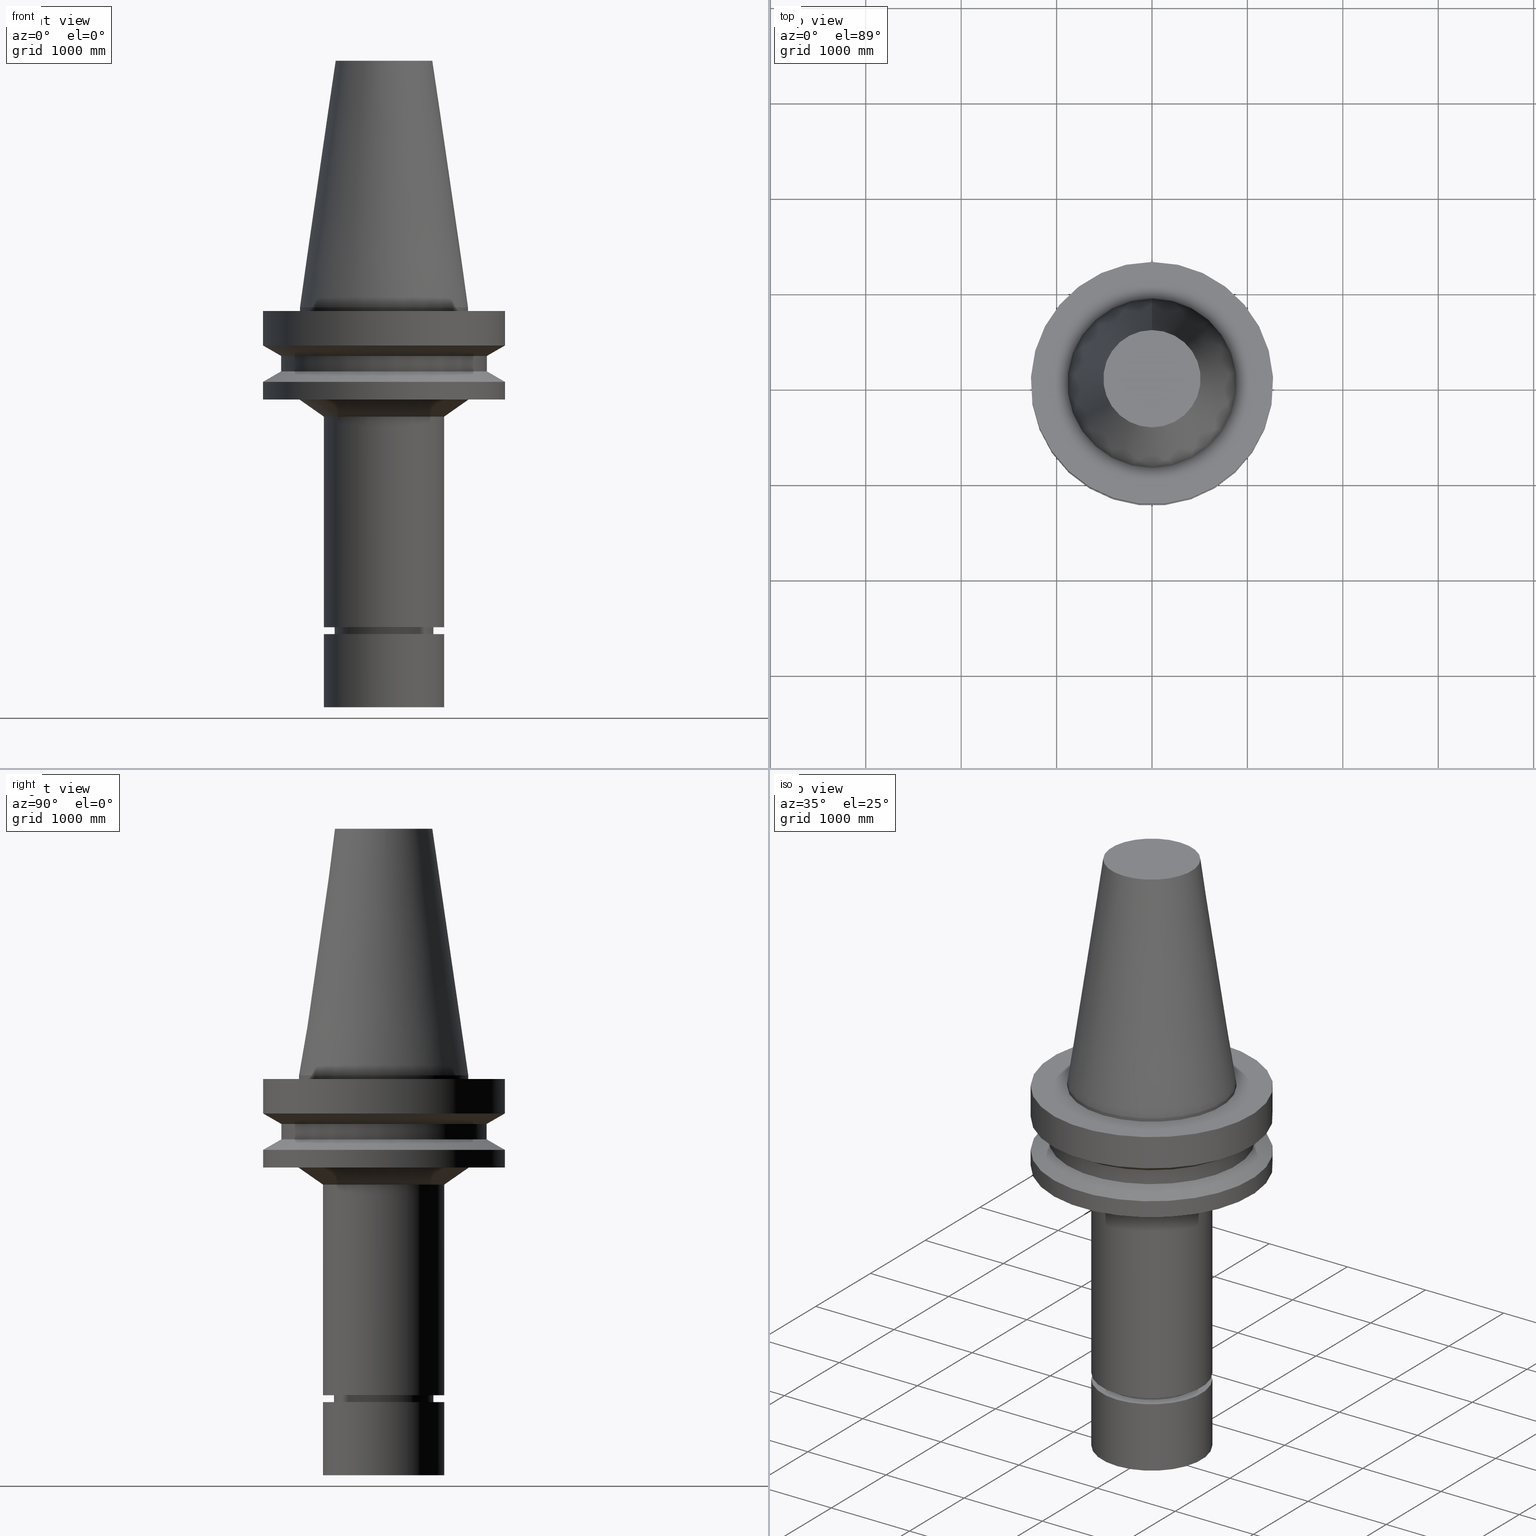
[diagram: canonical four-view strip — front | top / right | iso, engineering-drawing reading convention]
A machine part, canonical four-view strip (front | top / right | iso — engineering-drawing reading convention). The complete STEP part file that produces these views, byte-faithful:
ISO-10303-21;
HEADER;
FILE_DESCRIPTION((''),'1');
FILE_NAME('V:/90_\X2\53D65F9730C730FC30BF\X0\/00_\X2\6DE18DEF30C730FC30BF\X0\/ALL/BBT-BKUS\X2\FF76FF80FF9BFF78FF9E752852A05DE556F3\X0\201801/BBT50-MEGAER/BBT50-MEGAER32-165NL.stp','2018-02-02T09:12:51',(''),(''),'Spatial Interop R21 SP3','Kubotek KeyCreator 2011 V10.0.2 (22737)',' ');
FILE_SCHEMA(('automotive_design'));
ENDSEC;
DATA;
#1=MECHANICAL_DESIGN_GEOMETRIC_PRESENTATION_REPRESENTATION(' ',(#14,#15,#16,#17,#18,#19,#20,#21,#22,#23,#24,#25,#26,#27,#28,#29,#30,#31,#32,#33,#34,#35,#36,#37,#38,#39,#40,#41,#42,#43,#44,#45,#46,#47,#48,#49,#50,#51,#52,#53,#54,#55),#10);
#2=PRODUCT_DEFINITION_CONTEXT('',#56,'design');
#3=APPLICATION_PROTOCOL_DEFINITION('INTERNATIONAL STANDARD','automotive_design',1994,#56);
#4=PRODUCT_CATEGORY_RELATIONSHIP('NONE','NONE',#57,#58);
#5=SHAPE_DEFINITION_REPRESENTATION(#59,#60);
#6=PRODUCT_DEFINITION_CONTEXT('',#61,'design');
#7=APPLICATION_PROTOCOL_DEFINITION('INTERNATIONAL STANDARD','automotive_design',1994,#61);
#8=PRODUCT_CATEGORY_RELATIONSHIP('NONE','NONE',#62,#63);
#9=SHAPE_DEFINITION_REPRESENTATION(#64,#65);
#10= (GEOMETRIC_REPRESENTATION_CONTEXT(3)GLOBAL_UNCERTAINTY_ASSIGNED_CONTEXT((#68))GLOBAL_UNIT_ASSIGNED_CONTEXT((#70,#71,#72))REPRESENTATION_CONTEXT('NONE','WORKSPACE'));
#14=STYLED_ITEM('',(#74,#75),#76);
#15=STYLED_ITEM('',(#77,#78),#79);
#16=STYLED_ITEM('',(#80),#81);
#17=STYLED_ITEM('',(#82),#83);
#18=STYLED_ITEM('',(#84,#85),#86);
#19=STYLED_ITEM('',(#87),#88);
#20=STYLED_ITEM('',(#89),#90);
#21=STYLED_ITEM('',(#91,#92),#93);
#22=STYLED_ITEM('',(#94,#95),#96);
#23=STYLED_ITEM('',(#97),#98);
#24=STYLED_ITEM('',(#99,#100),#101);
#25=STYLED_ITEM('',(#102,#103),#104);
#26=STYLED_ITEM('',(#105,#106),#107);
#27=STYLED_ITEM('',(#108,#109),#110);
#28=STYLED_ITEM('',(#111,#112),#113);
#29=STYLED_ITEM('',(#114,#115),#116);
#30=STYLED_ITEM('',(#117),#118);
#31=STYLED_ITEM('',(#119),#120);
#32=STYLED_ITEM('',(#121),#122);
#33=STYLED_ITEM('',(#123),#124);
#34=STYLED_ITEM('',(#125,#126),#127);
#35=STYLED_ITEM('',(#128),#129);
#36=STYLED_ITEM('',(#130),#131);
#37=STYLED_ITEM('',(#132,#133),#134);
#38=STYLED_ITEM('',(#135,#136),#137);
#39=STYLED_ITEM('',(#138),#139);
#40=STYLED_ITEM('',(#140,#141),#142);
#41=STYLED_ITEM('',(#143),#144);
#42=STYLED_ITEM('',(#145,#146),#147);
#43=STYLED_ITEM('',(#148),#149);
#44=STYLED_ITEM('',(#150,#151),#152);
#45=STYLED_ITEM('',(#153,#154),#155);
#46=STYLED_ITEM('',(#156,#157),#158);
#47=STYLED_ITEM('',(#159,#160),#161);
#48=STYLED_ITEM('',(#162),#163);
#49=STYLED_ITEM('',(#164),#165);
#50=STYLED_ITEM('',(#166,#167),#168);
#51=STYLED_ITEM('',(#169),#170);
#52=STYLED_ITEM('',(#171),#172);
#53=STYLED_ITEM('',(#173,#174),#175);
#54=STYLED_ITEM('',(#176),#177);
#55=STYLED_ITEM('',(#178,#179),#180);
#56=APPLICATION_CONTEXT(' ');
#57=PRODUCT_CATEGORY('part','NONE');
#58=PRODUCT_RELATED_PRODUCT_CATEGORY('detail',' ',(#181));
#59=PRODUCT_DEFINITION_SHAPE('NONE','NONE',#182);
#60=ADVANCED_BREP_SHAPE_REPRESENTATION('Unnamed[1]',(#158,#183),#10);
#61=APPLICATION_CONTEXT(' ');
#62=PRODUCT_CATEGORY('part','NONE');
#63=PRODUCT_RELATED_PRODUCT_CATEGORY('detail',' ',(#184));
#64=PRODUCT_DEFINITION_SHAPE('NONE','NONE',#185);
#65=ADVANCED_BREP_SHAPE_REPRESENTATION('Unnamed[1]',(#134,#186),#10);
#68=UNCERTAINTY_MEASURE_WITH_UNIT(LENGTH_MEASURE(1.0E-006),#70,'','');
#70= (CONVERSION_BASED_UNIT('INCH',#189)LENGTH_UNIT()NAMED_UNIT(#192));
#71= (NAMED_UNIT(#194)PLANE_ANGLE_UNIT()SI_UNIT($,.RADIAN.));
#72= (NAMED_UNIT(#194)SOLID_ANGLE_UNIT()SI_UNIT($,.STERADIAN.));
#74=PRESENTATION_STYLE_ASSIGNMENT((#200));
#75=PRESENTATION_STYLE_ASSIGNMENT((#201));
#76=ADVANCED_FACE('Unnamed[1]',(#202,#203),#204,.T.);
#77=PRESENTATION_STYLE_ASSIGNMENT((#205));
#78=PRESENTATION_STYLE_ASSIGNMENT((#206));
#79=ADVANCED_FACE('Unnamed[1]',(#207,#208),#209,.T.);
#80=PRESENTATION_STYLE_ASSIGNMENT((#210));
#81=EDGE_CURVE('Unnamed[1]',#211,#211,#212,.T.);
#82=PRESENTATION_STYLE_ASSIGNMENT((#213));
#83=EDGE_CURVE('Unnamed[1]',#214,#214,#215,.T.);
#84=PRESENTATION_STYLE_ASSIGNMENT((#216));
#85=PRESENTATION_STYLE_ASSIGNMENT((#217));
#86=ADVANCED_FACE('Unnamed[1]',(#218,#219),#220,.T.);
#87=PRESENTATION_STYLE_ASSIGNMENT((#221));
#88=EDGE_CURVE('Unnamed[1]',#222,#222,#223,.T.);
#89=PRESENTATION_STYLE_ASSIGNMENT((#224));
#90=EDGE_CURVE('Unnamed[1]',#225,#225,#226,.T.);
#91=PRESENTATION_STYLE_ASSIGNMENT((#227));
#92=PRESENTATION_STYLE_ASSIGNMENT((#228));
#93=ADVANCED_FACE('Unnamed[1]',(#229,#230),#231,.T.);
#94=PRESENTATION_STYLE_ASSIGNMENT((#232));
#95=PRESENTATION_STYLE_ASSIGNMENT((#233));
#96=ADVANCED_FACE('Unnamed[1]',(#234,#235),#236,.T.);
#97=PRESENTATION_STYLE_ASSIGNMENT((#237));
#98=EDGE_CURVE('Unnamed[1]',#238,#238,#239,.T.);
#99=PRESENTATION_STYLE_ASSIGNMENT((#240));
#100=PRESENTATION_STYLE_ASSIGNMENT((#241));
#101=ADVANCED_FACE('Unnamed[1]',(#242,#243),#244,.T.);
#102=PRESENTATION_STYLE_ASSIGNMENT((#245));
#103=PRESENTATION_STYLE_ASSIGNMENT((#246));
#104=ADVANCED_FACE('Unnamed[1]',(#247),#248,.T.);
#105=PRESENTATION_STYLE_ASSIGNMENT((#249));
#106=PRESENTATION_STYLE_ASSIGNMENT((#250));
#107=ADVANCED_FACE('Unnamed[1]',(#251,#252),#253,.T.);
#108=PRESENTATION_STYLE_ASSIGNMENT((#254));
#109=PRESENTATION_STYLE_ASSIGNMENT((#255));
#110=ADVANCED_FACE('Unnamed[1]',(#256),#257,.T.);
#111=PRESENTATION_STYLE_ASSIGNMENT((#258));
#112=PRESENTATION_STYLE_ASSIGNMENT((#259));
#113=ADVANCED_FACE('Unnamed[1]',(#260,#261),#262,.T.);
#114=PRESENTATION_STYLE_ASSIGNMENT((#263));
#115=PRESENTATION_STYLE_ASSIGNMENT((#264));
#116=ADVANCED_FACE('Unnamed[1]',(#265,#266),#267,.T.);
#117=PRESENTATION_STYLE_ASSIGNMENT((#268));
#118=EDGE_CURVE('Unnamed[1]',#269,#269,#270,.T.);
#119=PRESENTATION_STYLE_ASSIGNMENT((#271));
#120=EDGE_CURVE('Unnamed[1]',#272,#272,#273,.T.);
#121=PRESENTATION_STYLE_ASSIGNMENT((#274));
#122=EDGE_CURVE('Unnamed[1]',#275,#275,#276,.T.);
#123=PRESENTATION_STYLE_ASSIGNMENT((#277));
#124=EDGE_CURVE('Unnamed[1]',#278,#278,#279,.T.);
#125=PRESENTATION_STYLE_ASSIGNMENT((#280));
#126=PRESENTATION_STYLE_ASSIGNMENT((#281));
#127=ADVANCED_FACE('Unnamed[1]',(#282),#283,.T.);
#128=PRESENTATION_STYLE_ASSIGNMENT((#284));
#129=EDGE_CURVE('Unnamed[1]',#285,#285,#286,.T.);
#130=PRESENTATION_STYLE_ASSIGNMENT((#287));
#131=EDGE_CURVE('Unnamed[1]',#288,#288,#289,.T.);
#132=PRESENTATION_STYLE_ASSIGNMENT((#290));
#133=PRESENTATION_STYLE_ASSIGNMENT((#291));
#134=MANIFOLD_SOLID_BREP('Unnamed[1]',#292);
#135=PRESENTATION_STYLE_ASSIGNMENT((#293));
#136=PRESENTATION_STYLE_ASSIGNMENT((#294));
#137=ADVANCED_FACE('Unnamed[1]',(#295,#296),#297,.T.);
#138=PRESENTATION_STYLE_ASSIGNMENT((#298));
#139=EDGE_CURVE('Unnamed[1]',#299,#299,#300,.T.);
#140=PRESENTATION_STYLE_ASSIGNMENT((#301));
#141=PRESENTATION_STYLE_ASSIGNMENT((#302));
#142=ADVANCED_FACE('Unnamed[1]',(#303,#304),#305,.T.);
#143=PRESENTATION_STYLE_ASSIGNMENT((#306));
#144=EDGE_CURVE('Unnamed[1]',#307,#307,#308,.T.);
#145=PRESENTATION_STYLE_ASSIGNMENT((#309));
#146=PRESENTATION_STYLE_ASSIGNMENT((#310));
#147=ADVANCED_FACE('Unnamed[1]',(#311,#312),#313,.T.);
#148=PRESENTATION_STYLE_ASSIGNMENT((#314));
#149=EDGE_CURVE('Unnamed[1]',#315,#315,#316,.T.);
#150=PRESENTATION_STYLE_ASSIGNMENT((#317));
#151=PRESENTATION_STYLE_ASSIGNMENT((#318));
#152=ADVANCED_FACE('Unnamed[1]',(#319,#320),#321,.T.);
#153=PRESENTATION_STYLE_ASSIGNMENT((#322));
#154=PRESENTATION_STYLE_ASSIGNMENT((#323));
#155=ADVANCED_FACE('Unnamed[1]',(#324,#325),#326,.T.);
#156=PRESENTATION_STYLE_ASSIGNMENT((#327));
#157=PRESENTATION_STYLE_ASSIGNMENT((#328));
#158=MANIFOLD_SOLID_BREP('Unnamed[1]',#329);
#159=PRESENTATION_STYLE_ASSIGNMENT((#330));
#160=PRESENTATION_STYLE_ASSIGNMENT((#331));
#161=ADVANCED_FACE('Unnamed[1]',(#332,#333),#334,.T.);
#162=PRESENTATION_STYLE_ASSIGNMENT((#335));
#163=EDGE_CURVE('Unnamed[1]',#336,#336,#337,.T.);
#164=PRESENTATION_STYLE_ASSIGNMENT((#338));
#165=EDGE_CURVE('Unnamed[1]',#339,#339,#340,.T.);
#166=PRESENTATION_STYLE_ASSIGNMENT((#341));
#167=PRESENTATION_STYLE_ASSIGNMENT((#342));
#168=ADVANCED_FACE('Unnamed[1]',(#343,#344),#345,.T.);
#169=PRESENTATION_STYLE_ASSIGNMENT((#346));
#170=EDGE_CURVE('Unnamed[1]',#347,#347,#348,.T.);
#171=PRESENTATION_STYLE_ASSIGNMENT((#349));
#172=EDGE_CURVE('Unnamed[1]',#350,#350,#351,.T.);
#173=PRESENTATION_STYLE_ASSIGNMENT((#352));
#174=PRESENTATION_STYLE_ASSIGNMENT((#353));
#175=ADVANCED_FACE('Unnamed[1]',(#354,#355),#356,.T.);
#176=PRESENTATION_STYLE_ASSIGNMENT((#357));
#177=EDGE_CURVE('Unnamed[1]',#358,#358,#359,.T.);
#178=PRESENTATION_STYLE_ASSIGNMENT((#360));
#179=PRESENTATION_STYLE_ASSIGNMENT((#361));
#180=ADVANCED_FACE('Unnamed[1]',(#362),#363,.T.);
#181=PRODUCT('Unnamed[1]','Unnamed[1]','PART-Unnamed[1]-DESC',(#364));
#182=PRODUCT_DEFINITION('NONE','NONE',#365,#2);
#183=AXIS2_PLACEMENT_3D('',#366,#367,#368);
#184=PRODUCT('Unnamed[1]','Unnamed[1]','PART-Unnamed[1]-DESC',(#369));
#185=PRODUCT_DEFINITION('NONE','NONE',#370,#6);
#186=AXIS2_PLACEMENT_3D('',#371,#372,#373);
#189=LENGTH_MEASURE_WITH_UNIT(LENGTH_MEASURE(25.4),#374);
#192=DIMENSIONAL_EXPONENTS(1.0,0.0,0.0,0.0,0.0,0.0,0.0);
#194=DIMENSIONAL_EXPONENTS(0.0,0.0,0.0,0.0,0.0,0.0,0.0);
#200=SURFACE_STYLE_USAGE(.BOTH.,#375);
#201=CURVE_STYLE('',#376,POSITIVE_LENGTH_MEASURE(1000.0),#377);
#202=FACE_BOUND('',#378,.T.);
#203=FACE_BOUND('',#379,.T.);
#204=CYLINDRICAL_SURFACE('',#380,20.0);
#205=SURFACE_STYLE_USAGE(.BOTH.,#381);
#206=CURVE_STYLE('',#382,POSITIVE_LENGTH_MEASURE(1000.0),#383);
#207=FACE_BOUND('',#384,.T.);
#208=FACE_BOUND('',#385,.T.);
#209=CONICAL_SURFACE('',#386,27.5020833325942,0.144812498253157);
#210=CURVE_STYLE('',#387,POSITIVE_LENGTH_MEASURE(1000.0),#388);
#211=VERTEX_POINT('',#389);
#212=CIRCLE('',#390,20.4999999999911);
#213=CURVE_STYLE('',#391,POSITIVE_LENGTH_MEASURE(1000.0),#392);
#214=VERTEX_POINT('',#393);
#215=CIRCLE('',#394,25.0000000000001);
#216=SURFACE_STYLE_USAGE(.BOTH.,#395);
#217=CURVE_STYLE('',#396,POSITIVE_LENGTH_MEASURE(1000.0),#397);
#218=FACE_BOUND('',#398,.T.);
#219=FACE_OUTER_BOUND('',#399,.T.);
#220=PLANE('',#400);
#221=CURVE_STYLE('',#401,POSITIVE_LENGTH_MEASURE(1000.0),#402);
#222=VERTEX_POINT('',#403);
#223=CIRCLE('',#404,42.5);
#224=CURVE_STYLE('',#405,POSITIVE_LENGTH_MEASURE(1000.0),#406);
#225=VERTEX_POINT('',#407);
#226=CIRCLE('',#408,50.0);
#227=SURFACE_STYLE_USAGE(.BOTH.,#409);
#228=CURVE_STYLE('',#410,POSITIVE_LENGTH_MEASURE(1000.0),#411);
#229=FACE_BOUND('',#412,.T.);
#230=FACE_BOUND('',#413,.T.);
#231=CYLINDRICAL_SURFACE('',#414,50.0);
#232=SURFACE_STYLE_USAGE(.BOTH.,#415);
#233=CURVE_STYLE('',#416,POSITIVE_LENGTH_MEASURE(1000.0),#417);
#234=FACE_BOUND('',#418,.T.);
#235=FACE_BOUND('',#419,.T.);
#236=CONICAL_SURFACE('',#420,30.0717863357276,0.962446965226463);
#237=CURVE_STYLE('',#421,POSITIVE_LENGTH_MEASURE(1000.0),#422);
#238=VERTEX_POINT('',#423);
#239=CIRCLE('',#424,25.0000000000004);
#240=SURFACE_STYLE_USAGE(.BOTH.,#425);
#241=CURVE_STYLE('',#426,POSITIVE_LENGTH_MEASURE(1000.0),#427);
#242=FACE_BOUND('',#428,.T.);
#243=FACE_BOUND('',#429,.T.);
#244=CYLINDRICAL_SURFACE('',#430,20.4999999999961);
#245=SURFACE_STYLE_USAGE(.BOTH.,#431);
#246=CURVE_STYLE('',#432,POSITIVE_LENGTH_MEASURE(1000.0),#433);
#247=FACE_OUTER_BOUND('',#434,.T.);
#248=PLANE('',#435);
#249=SURFACE_STYLE_USAGE(.BOTH.,#436);
#250=CURVE_STYLE('',#437,POSITIVE_LENGTH_MEASURE(1000.0),#438);
#251=FACE_BOUND('',#439,.T.);
#252=FACE_BOUND('',#440,.T.);
#253=CYLINDRICAL_SURFACE('',#441,34.925);
#254=SURFACE_STYLE_USAGE(.BOTH.,#442);
#255=CURVE_STYLE('',#443,POSITIVE_LENGTH_MEASURE(1000.0),#444);
#256=FACE_OUTER_BOUND('',#445,.T.);
#257=PLANE('',#446);
#258=SURFACE_STYLE_USAGE(.BOTH.,#447);
#259=CURVE_STYLE('',#448,POSITIVE_LENGTH_MEASURE(1000.0),#449);
#260=FACE_BOUND('',#450,.T.);
#261=FACE_BOUND('',#451,.T.);
#262=CYLINDRICAL_SURFACE('',#452,50.0);
#263=SURFACE_STYLE_USAGE(.BOTH.,#453);
#264=CURVE_STYLE('',#454,POSITIVE_LENGTH_MEASURE(1000.0),#455);
#265=FACE_OUTER_BOUND('',#456,.T.);
#266=FACE_BOUND('',#457,.T.);
#267=PLANE('',#458);
#268=CURVE_STYLE('',#459,POSITIVE_LENGTH_MEASURE(1000.0),#460);
#269=VERTEX_POINT('',#461);
#270=CIRCLE('',#462,35.1435726714548);
#271=CURVE_STYLE('',#463,POSITIVE_LENGTH_MEASURE(1000.0),#464);
#272=VERTEX_POINT('',#465);
#273=CIRCLE('',#466,34.925);
#274=CURVE_STYLE('',#467,POSITIVE_LENGTH_MEASURE(1000.0),#468);
#275=VERTEX_POINT('',#469);
#276=CIRCLE('',#470,42.5);
#277=CURVE_STYLE('',#471,POSITIVE_LENGTH_MEASURE(1000.0),#472);
#278=VERTEX_POINT('',#473);
#279=CIRCLE('',#474,50.0);
#280=SURFACE_STYLE_USAGE(.BOTH.,#475);
#281=CURVE_STYLE('',#476,POSITIVE_LENGTH_MEASURE(1000.0),#477);
#282=FACE_OUTER_BOUND('',#478,.T.);
#283=PLANE('',#479);
#284=CURVE_STYLE('',#480,POSITIVE_LENGTH_MEASURE(1000.0),#481);
#285=VERTEX_POINT('',#482);
#286=CIRCLE('',#483,25.0);
#287=CURVE_STYLE('',#484,POSITIVE_LENGTH_MEASURE(1000.0),#485);
#288=VERTEX_POINT('',#486);
#289=CIRCLE('',#487,50.0);
#290=SURFACE_STYLE_USAGE(.BOTH.,#488);
#291=CURVE_STYLE('',#489,POSITIVE_LENGTH_MEASURE(1000.0),#490);
#292=CLOSED_SHELL('',(#180,#127,#161));
#293=SURFACE_STYLE_USAGE(.BOTH.,#491);
#294=CURVE_STYLE('',#492,POSITIVE_LENGTH_MEASURE(1000.0),#493);
#295=FACE_BOUND('',#494,.T.);
#296=FACE_BOUND('',#495,.T.);
#297=CONICAL_SURFACE('',#496,20.2500000000006,1.04719755120256);
#298=CURVE_STYLE('',#497,POSITIVE_LENGTH_MEASURE(1000.0),#498);
#299=VERTEX_POINT('',#499);
#300=CIRCLE('',#500,50.0);
#301=SURFACE_STYLE_USAGE(.BOTH.,#501);
#302=CURVE_STYLE('',#502,POSITIVE_LENGTH_MEASURE(1000.0),#503);
#303=FACE_BOUND('',#504,.T.);
#304=FACE_BOUND('',#505,.T.);
#305=CYLINDRICAL_SURFACE('',#506,25.0000000000002);
#306=CURVE_STYLE('',#507,POSITIVE_LENGTH_MEASURE(1000.0),#508);
#307=VERTEX_POINT('',#509);
#308=CIRCLE('',#510,25.0);
#309=SURFACE_STYLE_USAGE(.BOTH.,#511);
#310=CURVE_STYLE('',#512,POSITIVE_LENGTH_MEASURE(1000.0),#513);
#311=FACE_BOUND('',#514,.T.);
#312=FACE_BOUND('',#515,.T.);
#313=CONICAL_SURFACE('',#516,46.25,1.04719755108882);
#314=CURVE_STYLE('',#517,POSITIVE_LENGTH_MEASURE(1000.0),#518);
#315=VERTEX_POINT('',#519);
#316=CIRCLE('',#520,34.925);
#317=SURFACE_STYLE_USAGE(.BOTH.,#521);
#318=CURVE_STYLE('',#522,POSITIVE_LENGTH_MEASURE(1000.0),#523);
#319=FACE_OUTER_BOUND('',#524,.T.);
#320=FACE_BOUND('',#525,.T.);
#321=PLANE('',#526);
#322=SURFACE_STYLE_USAGE(.BOTH.,#527);
#323=CURVE_STYLE('',#528,POSITIVE_LENGTH_MEASURE(1000.0),#529);
#324=FACE_BOUND('',#530,.T.);
#325=FACE_BOUND('',#531,.T.);
#326=CYLINDRICAL_SURFACE('',#532,42.5);
#327=SURFACE_STYLE_USAGE(.BOTH.,#533);
#328=CURVE_STYLE('',#534,POSITIVE_LENGTH_MEASURE(1000.0),#535);
#329=CLOSED_SHELL('',(#104,#175,#76,#137,#101,#152,#142,#96,#116,#93,#168,#155,#147,#113,#86,#107,#79,#110));
#330=SURFACE_STYLE_USAGE(.BOTH.,#536);
#331=CURVE_STYLE('',#537,POSITIVE_LENGTH_MEASURE(1000.0),#538);
#332=FACE_BOUND('',#539,.T.);
#333=FACE_BOUND('',#540,.T.);
#334=CYLINDRICAL_SURFACE('',#541,25.0);
#335=CURVE_STYLE('',#542,POSITIVE_LENGTH_MEASURE(1000.0),#543);
#336=VERTEX_POINT('',#544);
#337=CIRCLE('',#545,20.0000000000001);
#338=CURVE_STYLE('',#546,POSITIVE_LENGTH_MEASURE(1000.0),#547);
#339=VERTEX_POINT('',#548);
#340=CIRCLE('',#549,20.5000000000012);
#341=SURFACE_STYLE_USAGE(.BOTH.,#550);
#342=CURVE_STYLE('',#551,POSITIVE_LENGTH_MEASURE(1000.0),#552);
#343=FACE_BOUND('',#553,.T.);
#344=FACE_BOUND('',#554,.T.);
#345=CONICAL_SURFACE('',#555,46.25,1.04719755108882);
#346=CURVE_STYLE('',#556,POSITIVE_LENGTH_MEASURE(1000.0),#557);
#347=VERTEX_POINT('',#558);
#348=CIRCLE('',#559,20.0);
#349=CURVE_STYLE('',#560,POSITIVE_LENGTH_MEASURE(1000.0),#561);
#350=VERTEX_POINT('',#562);
#351=CIRCLE('',#563,20.0791666651884);
#352=SURFACE_STYLE_USAGE(.BOTH.,#564);
#353=CURVE_STYLE('',#565,POSITIVE_LENGTH_MEASURE(1000.0),#566);
#354=FACE_BOUND('',#567,.T.);
#355=FACE_BOUND('',#568,.T.);
#356=CONICAL_SURFACE('',#569,19.4499999999999,0.523598775598201);
#357=CURVE_STYLE('',#570,POSITIVE_LENGTH_MEASURE(1000.0),#571);
#358=VERTEX_POINT('',#572);
#359=CIRCLE('',#573,18.8999999999997);
#360=SURFACE_STYLE_USAGE(.BOTH.,#574);
#361=CURVE_STYLE('',#575,POSITIVE_LENGTH_MEASURE(1000.0),#576);
#362=FACE_OUTER_BOUND('',#577,.T.);
#363=PLANE('',#578);
#364=PRODUCT_CONTEXT('',#56,'mechanical');
#365=PRODUCT_DEFINITION_FORMATION_WITH_SPECIFIED_SOURCE(' ','NONE',#181,.NOT_KNOWN.);
#366=CARTESIAN_POINT('',(0.0,0.0,0.0));
#367=DIRECTION('',(0.0,0.0,1.0));
#368=DIRECTION('',(1.0,0.0,0.0));
#369=PRODUCT_CONTEXT('',#61,'mechanical');
#370=PRODUCT_DEFINITION_FORMATION_WITH_SPECIFIED_SOURCE(' ','NONE',#184,.NOT_KNOWN.);
#371=CARTESIAN_POINT('',(0.0,0.0,0.0));
#372=DIRECTION('',(0.0,0.0,1.0));
#373=DIRECTION('',(1.0,0.0,0.0));
#374= (NAMED_UNIT(#192)LENGTH_UNIT()SI_UNIT(.MILLI.,.METRE.));
#375=SURFACE_SIDE_STYLE('',(#580));
#376=DRAUGHTING_PRE_DEFINED_CURVE_FONT('continuous');
#377=COLOUR_RGB('',0.0,1.0,0.0);
#378=EDGE_LOOP('',(#581));
#379=EDGE_LOOP('',(#582));
#380=AXIS2_PLACEMENT_3D('',#583,#584,#585);
#381=SURFACE_SIDE_STYLE('',(#586));
#382=DRAUGHTING_PRE_DEFINED_CURVE_FONT('continuous');
#383=COLOUR_RGB('',0.0,1.0,0.0);
#384=EDGE_LOOP('',(#587));
#385=EDGE_LOOP('',(#588));
#386=AXIS2_PLACEMENT_3D('',#589,#590,#591);
#387=DRAUGHTING_PRE_DEFINED_CURVE_FONT('continuous');
#388=COLOUR_RGB('',0.0,1.0,0.0);
#389=CARTESIAN_POINT('',(8.08267852271587E-015,20.4999999999911,-132.000157569404));
#390=AXIS2_PLACEMENT_3D('',#592,#593,#594);
#391=DRAUGHTING_PRE_DEFINED_CURVE_FONT('continuous');
#392=COLOUR_RGB('',0.0,1.0,0.0);
#393=CARTESIAN_POINT('',(8.08267852271584E-015,25.0000000000001,-132.000157569404));
#394=AXIS2_PLACEMENT_3D('',#595,#596,#597);
#395=SURFACE_SIDE_STYLE('',(#598));
#396=DRAUGHTING_PRE_DEFINED_CURVE_FONT('continuous');
#397=COLOUR_RGB('',0.0,1.0,0.0);
#398=EDGE_LOOP('',(#599));
#399=EDGE_LOOP('',(#600));
#400=AXIS2_PLACEMENT_3D('',#601,#602,#603);
#401=DRAUGHTING_PRE_DEFINED_CURVE_FONT('continuous');
#402=COLOUR_RGB('',0.0,1.0,0.0);
#403=CARTESIAN_POINT('',(1.2264915470779E-015,42.5,-20.03012702));
#404=AXIS2_PLACEMENT_3D('',#604,#605,#606);
#405=DRAUGHTING_PRE_DEFINED_CURVE_FONT('continuous');
#406=COLOUR_RGB('',0.0,1.0,0.0);
#407=CARTESIAN_POINT('',(1.87983283669119E-015,50.0,-30.7000000000001));
#408=AXIS2_PLACEMENT_3D('',#607,#608,#609);
#409=SURFACE_SIDE_STYLE('',(#610));
#410=DRAUGHTING_PRE_DEFINED_CURVE_FONT('continuous');
#411=COLOUR_RGB('',0.0,1.0,0.0);
#412=EDGE_LOOP('',(#611));
#413=EDGE_LOOP('',(#612));
#414=AXIS2_PLACEMENT_3D('',#613,#614,#615);
#415=SURFACE_SIDE_STYLE('',(#616));
#416=DRAUGHTING_PRE_DEFINED_CURVE_FONT('continuous');
#417=COLOUR_RGB('',0.0,1.0,0.0);
#418=EDGE_LOOP('',(#617));
#419=EDGE_LOOP('',(#618));
#420=AXIS2_PLACEMENT_3D('',#619,#620,#621);
#421=DRAUGHTING_PRE_DEFINED_CURVE_FONT('continuous');
#422=COLOUR_RGB('',0.0,1.0,0.0);
#423=CARTESIAN_POINT('',(2.75941339741642E-015,25.0000000000004,-45.0646406676216));
#424=AXIS2_PLACEMENT_3D('',#622,#623,#624);
#425=SURFACE_SIDE_STYLE('',(#625));
#426=DRAUGHTING_PRE_DEFINED_CURVE_FONT('continuous');
#427=COLOUR_RGB('',0.0,1.0,0.0);
#428=EDGE_LOOP('',(#626));
#429=EDGE_LOOP('',(#627));
#430=AXIS2_PLACEMENT_3D('',#628,#629,#630);
#431=SURFACE_SIDE_STYLE('',(#631));
#432=DRAUGHTING_PRE_DEFINED_CURVE_FONT('continuous');
#433=COLOUR_RGB('',0.0,1.0,0.0);
#434=EDGE_LOOP('',(#632));
#435=AXIS2_PLACEMENT_3D('',#633,#634,#635);
#436=SURFACE_SIDE_STYLE('',(#636));
#437=DRAUGHTING_PRE_DEFINED_CURVE_FONT('continuous');
#438=COLOUR_RGB('',0.0,1.0,0.0);
#439=EDGE_LOOP('',(#637));
#440=EDGE_LOOP('',(#638));
#441=AXIS2_PLACEMENT_3D('',#639,#640,#641);
#442=SURFACE_SIDE_STYLE('',(#642));
#443=DRAUGHTING_PRE_DEFINED_CURVE_FONT('continuous');
#444=COLOUR_RGB('',0.0,1.0,0.0);
#445=EDGE_LOOP('',(#643));
#446=AXIS2_PLACEMENT_3D('',#644,#645,#646);
#447=SURFACE_SIDE_STYLE('',(#647));
#448=DRAUGHTING_PRE_DEFINED_CURVE_FONT('continuous');
#449=COLOUR_RGB('',0.0,1.0,0.0);
#450=EDGE_LOOP('',(#648));
#451=EDGE_LOOP('',(#649));
#452=AXIS2_PLACEMENT_3D('',#650,#651,#652);
#453=SURFACE_SIDE_STYLE('',(#653));
#454=DRAUGHTING_PRE_DEFINED_CURVE_FONT('continuous');
#455=COLOUR_RGB('',0.0,1.0,0.0);
#456=EDGE_LOOP('',(#654));
#457=EDGE_LOOP('',(#655));
#458=AXIS2_PLACEMENT_3D('',#656,#657,#658);
#459=DRAUGHTING_PRE_DEFINED_CURVE_FONT('continuous');
#460=COLOUR_RGB('',0.0,1.0,0.0);
#461=CARTESIAN_POINT('',(2.32682891837996E-015,35.1435726714548,-37.9999999999998));
#462=AXIS2_PLACEMENT_3D('',#659,#660,#661);
#463=DRAUGHTING_PRE_DEFINED_CURVE_FONT('continuous');
#464=COLOUR_RGB('',0.0,1.0,0.0);
#465=CARTESIAN_POINT('',(-4.30483861169435E-031,34.925,4.27707894602213E-015));
#466=AXIS2_PLACEMENT_3D('',#662,#663,#664);
#467=DRAUGHTING_PRE_DEFINED_CURVE_FONT('continuous');
#468=COLOUR_RGB('',0.0,1.0,0.0);
#469=CARTESIAN_POINT('',(1.61468902694397E-015,42.5,-26.3698729800001));
#470=AXIS2_PLACEMENT_3D('',#665,#666,#667);
#471=DRAUGHTING_PRE_DEFINED_CURVE_FONT('continuous');
#472=COLOUR_RGB('',0.0,1.0,0.0);
#473=CARTESIAN_POINT('',(9.61347737330674E-016,50.0,-15.7));
#474=AXIS2_PLACEMENT_3D('',#668,#669,#670);
#475=SURFACE_SIDE_STYLE('',(#671));
#476=DRAUGHTING_PRE_DEFINED_CURVE_FONT('continuous');
#477=COLOUR_RGB('',0.0,1.0,0.0);
#478=EDGE_LOOP('',(#672));
#479=AXIS2_PLACEMENT_3D('',#673,#674,#675);
#480=DRAUGHTING_PRE_DEFINED_CURVE_FONT('continuous');
#481=COLOUR_RGB('',0.0,1.0,0.0);
#482=CARTESIAN_POINT('',(1.01033360929657E-014,25.0,-165.0));
#483=AXIS2_PLACEMENT_3D('',#676,#677,#678);
#484=DRAUGHTING_PRE_DEFINED_CURVE_FONT('continuous');
#485=COLOUR_RGB('',0.0,1.0,0.0);
#486=CARTESIAN_POINT('',(2.32682891837996E-015,50.0,-37.9999999999998));
#487=AXIS2_PLACEMENT_3D('',#679,#680,#681);
#488=SURFACE_SIDE_STYLE('',(#682));
#489=DRAUGHTING_PRE_DEFINED_CURVE_FONT('continuous');
#490=COLOUR_RGB('',0.0,1.0,0.0);
#491=SURFACE_SIDE_STYLE('',(#683));
#492=DRAUGHTING_PRE_DEFINED_CURVE_FONT('continuous');
#493=COLOUR_RGB('',0.0,1.0,0.0);
#494=EDGE_LOOP('',(#684));
#495=EDGE_LOOP('',(#685));
#496=AXIS2_PLACEMENT_3D('',#686,#687,#688);
#497=DRAUGHTING_PRE_DEFINED_CURVE_FONT('continuous');
#498=COLOUR_RGB('',0.0,1.0,0.0);
#499=CARTESIAN_POINT('',(9.18485099360509E-017,50.0,-1.49999999999999));
#500=AXIS2_PLACEMENT_3D('',#689,#690,#691);
#501=SURFACE_SIDE_STYLE('',(#692));
#502=DRAUGHTING_PRE_DEFINED_CURVE_FONT('continuous');
#503=COLOUR_RGB('',0.0,1.0,0.0);
#504=EDGE_LOOP('',(#693));
#505=EDGE_LOOP('',(#694));
#506=AXIS2_PLACEMENT_3D('',#695,#696,#697);
#507=DRAUGHTING_PRE_DEFINED_CURVE_FONT('continuous');
#508=COLOUR_RGB('',0.0,1.0,0.0);
#509=CARTESIAN_POINT('',(8.25411942625316E-015,25.0,-134.8));
#510=AXIS2_PLACEMENT_3D('',#698,#699,#700);
#511=SURFACE_SIDE_STYLE('',(#701));
#512=DRAUGHTING_PRE_DEFINED_CURVE_FONT('continuous');
#513=COLOUR_RGB('',0.0,1.0,0.0);
#514=EDGE_LOOP('',(#702));
#515=EDGE_LOOP('',(#703));
#516=AXIS2_PLACEMENT_3D('',#704,#705,#706);
#517=DRAUGHTING_PRE_DEFINED_CURVE_FONT('continuous');
#518=COLOUR_RGB('',0.0,1.0,0.0);
#519=CARTESIAN_POINT('',(9.18485099360511E-017,34.925,-1.5));
#520=AXIS2_PLACEMENT_3D('',#707,#708,#709);
#521=SURFACE_SIDE_STYLE('',(#710));
#522=DRAUGHTING_PRE_DEFINED_CURVE_FONT('continuous');
#523=COLOUR_RGB('',0.0,1.0,0.0);
#524=EDGE_LOOP('',(#711));
#525=EDGE_LOOP('',(#712));
#526=AXIS2_PLACEMENT_3D('',#713,#714,#715);
#527=SURFACE_SIDE_STYLE('',(#716));
#528=DRAUGHTING_PRE_DEFINED_CURVE_FONT('continuous');
#529=COLOUR_RGB('',0.0,1.0,0.0);
#530=EDGE_LOOP('',(#717));
#531=EDGE_LOOP('',(#718));
#532=AXIS2_PLACEMENT_3D('',#719,#720,#721);
#533=SURFACE_SIDE_STYLE('',(#722));
#534=DRAUGHTING_PRE_DEFINED_CURVE_FONT('continuous');
#535=COLOUR_RGB('',0.0,1.0,0.0);
#536=SURFACE_SIDE_STYLE('',(#723));
#537=DRAUGHTING_PRE_DEFINED_CURVE_FONT('continuous');
#538=COLOUR_RGB('',0.0,1.0,0.0);
#539=EDGE_LOOP('',(#724));
#540=EDGE_LOOP('',(#725));
#541=AXIS2_PLACEMENT_3D('',#726,#727,#728);
#542=DRAUGHTING_PRE_DEFINED_CURVE_FONT('continuous');
#543=COLOUR_RGB('',0.0,1.0,0.0);
#544=CARTESIAN_POINT('',(9.31311707717483E-015,20.0000000000001,-152.094744111673));
#545=AXIS2_PLACEMENT_3D('',#729,#730,#731);
#546=DRAUGHTING_PRE_DEFINED_CURVE_FONT('continuous');
#547=COLOUR_RGB('',0.0,1.0,0.0);
#548=CARTESIAN_POINT('',(8.46301247845949E-015,20.5000000000012,-138.211482434801));
#549=AXIS2_PLACEMENT_3D('',#732,#733,#734);
#550=SURFACE_SIDE_STYLE('',(#735));
#551=DRAUGHTING_PRE_DEFINED_CURVE_FONT('continuous');
#552=COLOUR_RGB('',0.0,1.0,0.0);
#553=EDGE_LOOP('',(#736));
#554=EDGE_LOOP('',(#737));
#555=AXIS2_PLACEMENT_3D('',#738,#739,#740);
#556=DRAUGHTING_PRE_DEFINED_CURVE_FONT('continuous');
#557=COLOUR_RGB('',0.0,1.0,0.0);
#558=CARTESIAN_POINT('',(8.48068873243803E-015,20.0,-138.500157569393));
#559=AXIS2_PLACEMENT_3D('',#741,#742,#743);
#560=DRAUGHTING_PRE_DEFINED_CURVE_FONT('continuous');
#561=COLOUR_RGB('',0.0,1.0,0.0);
#562=CARTESIAN_POINT('',(-6.23345220766003E-015,20.0791666651884,101.8));
#563=AXIS2_PLACEMENT_3D('',#744,#745,#746);
#564=SURFACE_SIDE_STYLE('',(#747));
#565=DRAUGHTING_PRE_DEFINED_CURVE_FONT('continuous');
#566=COLOUR_RGB('',0.0,1.0,0.0);
#567=EDGE_LOOP('',(#748));
#568=EDGE_LOOP('',(#749));
#569=AXIS2_PLACEMENT_3D('',#750,#751,#752);
#570=DRAUGHTING_PRE_DEFINED_CURVE_FONT('continuous');
#571=COLOUR_RGB('',0.0,1.0,0.0);
#572=CARTESIAN_POINT('',(9.42978035343464E-015,18.8999999999997,-154.0));
#573=AXIS2_PLACEMENT_3D('',#753,#754,#755);
#574=SURFACE_SIDE_STYLE('',(#756));
#575=DRAUGHTING_PRE_DEFINED_CURVE_FONT('continuous');
#576=COLOUR_RGB('',0.0,1.0,0.0);
#577=EDGE_LOOP('',(#757));
#578=AXIS2_PLACEMENT_3D('',#758,#759,#760);
#580=SURFACE_STYLE_FILL_AREA(#761);
#581=ORIENTED_EDGE('',*,*,#170,.F.);
#582=ORIENTED_EDGE('',*,*,#163,.T.);
#583=CARTESIAN_POINT('',(8.89690290480643E-015,1.97654771581335E-014,-145.297450840533));
#584=DIRECTION('',(-6.12323399573676E-017,-2.72265846766347E-017,1.0));
#585=DIRECTION('',(-6.49430021957034E-033,1.0,2.72265846766347E-017));
#586=SURFACE_STYLE_FILL_AREA(#762);
#587=ORIENTED_EDGE('',*,*,#172,.F.);
#588=ORIENTED_EDGE('',*,*,#120,.T.);
#589=CARTESIAN_POINT('',(-3.11672610383001E-015,1.44236906494828E-014,50.9));
#590=DIRECTION('',(6.12323399573677E-017,2.72265846766601E-017,-1.0));
#591=DIRECTION('',(-6.49430021957166E-033,1.0,2.72265846766601E-017));
#592=CARTESIAN_POINT('',(8.08267852271587E-015,1.9403437276917E-014,-132.000157569404));
#593=DIRECTION('',(-6.12323399573677E-017,-2.72265846766427E-017,1.0));
#594=DIRECTION('',(-6.49430021956947E-033,1.0,2.72265846766427E-017));
#595=CARTESIAN_POINT('',(8.08267852271584E-015,1.9403437276917E-014,-132.000157569404));
#596=DIRECTION('',(-6.12323399573676E-017,-2.7226584676667E-017,1.0));
#597=DIRECTION('',(-6.49430021956855E-033,1.0,2.7226584676667E-017));
#598=SURFACE_STYLE_FILL_AREA(#763);
#599=ORIENTED_EDGE('',*,*,#149,.F.);
#600=ORIENTED_EDGE('',*,*,#139,.T.);
#601=CARTESIAN_POINT('',(9.1848509936051E-017,42.4625,-1.49999999999999));
#602=DIRECTION('',(-6.12323399573677E-017,-1.22464679914735E-016,1.0));
#603=DIRECTION('',(-1.23259516440783E-032,1.0,1.22464679914735E-016));
#604=CARTESIAN_POINT('',(1.2264915470779E-015,1.63548757589177E-014,-20.03012702));
#605=DIRECTION('',(-6.12323399573677E-017,-2.72265846766253E-017,1.0));
#606=DIRECTION('',(-6.4943002195635E-033,1.0,2.72265846766253E-017));
#607=CARTESIAN_POINT('',(1.87983283669119E-015,1.66453799590967E-014,-30.7));
#608=DIRECTION('',(-6.12323399573677E-017,-2.72265846766671E-017,1.0));
#609=DIRECTION('',(-6.49430021956856E-033,1.0,2.72265846766671E-017));
#610=SURFACE_STYLE_FILL_AREA(#764);
#611=ORIENTED_EDGE('',*,*,#90,.F.);
#612=ORIENTED_EDGE('',*,*,#131,.T.);
#613=CARTESIAN_POINT('',(2.10333087753557E-015,1.67447569931664E-014,-34.3499999999999));
#614=DIRECTION('',(-6.12323399573677E-017,-2.72265846766671E-017,1.0));
#615=DIRECTION('',(-6.49430021956856E-033,1.0,2.72265846766671E-017));
#616=SURFACE_STYLE_FILL_AREA(#765);
#617=ORIENTED_EDGE('',*,*,#118,.F.);
#618=ORIENTED_EDGE('',*,*,#98,.T.);
#619=CARTESIAN_POINT('',(2.54312115789819E-015,1.69403070459096E-014,-41.5323203338107));
#620=DIRECTION('',(-6.12323399573677E-017,-2.72265846766512E-017,1.0));
#621=DIRECTION('',(-6.49430021956866E-033,1.0,2.72265846766512E-017));
#622=CARTESIAN_POINT('',(2.75941339741642E-015,1.70364800645832E-014,-45.0646406676216));
#623=DIRECTION('',(-6.12323399573677E-017,-2.72265846766667E-017,1.0));
#624=DIRECTION('',(-6.49430021956846E-033,1.0,2.72265846766667E-017));
#625=SURFACE_STYLE_FILL_AREA(#766);
#626=ORIENTED_EDGE('',*,*,#81,.F.);
#627=ORIENTED_EDGE('',*,*,#165,.T.);
#628=CARTESIAN_POINT('',(8.27284550058768E-015,1.94879938581179E-014,-135.105820002103));
#629=DIRECTION('',(-6.12323399573676E-017,-2.7226584676636E-017,1.0));
#630=DIRECTION('',(-6.49430021956787E-033,1.0,2.7226584676636E-017));
#631=SURFACE_STYLE_FILL_AREA(#767);
#632=ORIENTED_EDGE('',*,*,#177,.F.);
#633=CARTESIAN_POINT('',(9.42978035343463E-015,9.44999999999984,-154.0));
#634=DIRECTION('',(6.12323399573677E-017,-1.64192709674107E-014,-1.0));
#635=DIRECTION('',(-1.00056322899786E-030,-1.0,1.64192709674107E-014));
#636=SURFACE_STYLE_FILL_AREA(#768);
#637=ORIENTED_EDGE('',*,*,#120,.F.);
#638=ORIENTED_EDGE('',*,*,#149,.T.);
#639=CARTESIAN_POINT('',(4.59242549680257E-017,1.58299437480313E-014,-0.75));
#640=DIRECTION('',(-6.12323399573677E-017,-2.72265846766536E-017,1.0));
#641=DIRECTION('',(-6.4943002195703E-033,1.0,2.72265846766536E-017));
#642=SURFACE_STYLE_FILL_AREA(#769);
#643=ORIENTED_EDGE('',*,*,#172,.T.);
#644=CARTESIAN_POINT('',(-6.23345220766003E-015,10.0395833325942,101.8));
#645=DIRECTION('',(-6.12323399573677E-017,-1.22464679914735E-016,1.0));
#646=DIRECTION('',(-1.23259516440783E-032,1.0,1.22464679914735E-016));
#647=SURFACE_STYLE_FILL_AREA(#770);
#648=ORIENTED_EDGE('',*,*,#139,.F.);
#649=ORIENTED_EDGE('',*,*,#124,.T.);
#650=CARTESIAN_POINT('',(5.26598123633363E-016,1.60436724377429E-014,-8.60000000000002));
#651=DIRECTION('',(-6.12323399573677E-017,-2.72265846766671E-017,1.0));
#652=DIRECTION('',(-6.49430021956856E-033,1.0,2.72265846766671E-017));
#653=SURFACE_STYLE_FILL_AREA(#771);
#654=ORIENTED_EDGE('',*,*,#131,.F.);
#655=ORIENTED_EDGE('',*,*,#118,.T.);
#656=CARTESIAN_POINT('',(2.32682891837996E-015,42.5717863357274,-37.9999999999998));
#657=DIRECTION('',(6.12323399573677E-017,2.03555648872361E-015,-1.0));
#658=DIRECTION('',(1.29469039650718E-031,-1.0,-2.03555648872361E-015));
#659=CARTESIAN_POINT('',(2.32682891837996E-015,1.68441340272361E-014,-37.9999999999998));
#660=DIRECTION('',(-6.12323399573677E-017,-2.72265846765942E-017,1.0));
#661=DIRECTION('',(-6.49430021956881E-033,1.0,2.72265846765942E-017));
#662=CARTESIAN_POINT('',(-1.94867425992095E-046,1.58095238095238E-014,1.93610827293772E-030));
#663=DIRECTION('',(-6.12323399573677E-017,-2.72265846766536E-017,1.0));
#664=DIRECTION('',(-6.4943002195703E-033,1.0,2.72265846766536E-017));
#665=CARTESIAN_POINT('',(1.61468902694397E-015,1.6527485389126E-014,-26.3698729800001));
#666=DIRECTION('',(-6.12323399573677E-017,-2.72265846766253E-017,1.0));
#667=DIRECTION('',(-6.4943002195635E-033,1.0,2.72265846766253E-017));
#668=CARTESIAN_POINT('',(9.61347737330675E-016,1.62369811889471E-014,-15.7));
#669=DIRECTION('',(-6.12323399573677E-017,-2.72265846766671E-017,1.0));
#670=DIRECTION('',(-6.49430021956856E-033,1.0,2.72265846766671E-017));
#671=SURFACE_STYLE_FILL_AREA(#772);
#672=ORIENTED_EDGE('',*,*,#144,.F.);
#673=CARTESIAN_POINT('',(8.25411942625316E-015,12.5,-134.8));
#674=DIRECTION('',(-6.12323399573677E-017,-1.22464679914735E-016,1.0));
#675=DIRECTION('',(1.23259516440783E-032,-1.0,-1.22464679914735E-016));
#676=CARTESIAN_POINT('',(1.01033360929657E-014,2.03019102811694E-014,-165.0));
#677=DIRECTION('',(6.12323399573677E-017,2.72265846766401E-017,-1.0));
#678=DIRECTION('',(-6.4943002195671E-033,1.0,2.72265846766401E-017));
#679=CARTESIAN_POINT('',(2.32682891837996E-015,1.68441340272361E-014,-37.9999999999998));
#680=DIRECTION('',(-6.12323399573677E-017,-2.72265846766671E-017,1.0));
#681=DIRECTION('',(-6.49430021956856E-033,1.0,2.72265846766671E-017));
#682=SURFACE_STYLE_FILL_AREA(#773);
#683=SURFACE_STYLE_FILL_AREA(#774);
#684=ORIENTED_EDGE('',*,*,#165,.F.);
#685=ORIENTED_EDGE('',*,*,#170,.T.);
#686=CARTESIAN_POINT('',(8.47185060544876E-015,1.95764802583169E-014,-138.355820002097));
#687=DIRECTION('',(-6.12323399573677E-017,-2.7226584676632E-017,1.0));
#688=DIRECTION('',(-6.49430021956607E-033,1.0,2.7226584676632E-017));
#689=CARTESIAN_POINT('',(9.18485099360515E-017,1.58503636865388E-014,-1.5));
#690=DIRECTION('',(-6.12323399573677E-017,-2.72265846766671E-017,1.0));
#691=DIRECTION('',(-6.49430021956856E-033,1.0,2.72265846766671E-017));
#692=SURFACE_STYLE_FILL_AREA(#775);
#693=ORIENTED_EDGE('',*,*,#98,.F.);
#694=ORIENTED_EDGE('',*,*,#83,.T.);
#695=CARTESIAN_POINT('',(5.42104596006613E-015,1.82199586707501E-014,-88.5323991185128));
#696=DIRECTION('',(-6.12323399573677E-017,-2.72265846766668E-017,1.0));
#697=DIRECTION('',(-6.4943002195685E-033,1.0,2.72265846766668E-017));
#698=CARTESIAN_POINT('',(8.25411942625316E-015,1.94796674239349E-014,-134.8));
#699=DIRECTION('',(6.12323399573677E-017,2.72265846766401E-017,-1.0));
#700=DIRECTION('',(-6.4943002195671E-033,1.0,2.72265846766401E-017));
#701=SURFACE_STYLE_FILL_AREA(#776);
#702=ORIENTED_EDGE('',*,*,#124,.F.);
#703=ORIENTED_EDGE('',*,*,#88,.T.);
#704=CARTESIAN_POINT('',(1.09391964220429E-015,1.62959284739324E-014,-17.86506351));
#705=DIRECTION('',(-6.12323399573677E-017,-2.72265846766479E-017,1.0));
#706=DIRECTION('',(-6.4943002195643E-033,1.0,2.72265846766479E-017));
#707=CARTESIAN_POINT('',(9.18485099360515E-017,1.58503636865388E-014,-1.5));
#708=DIRECTION('',(-6.12323399573677E-017,-2.72265846766536E-017,1.0));
#709=DIRECTION('',(-6.4943002195703E-033,1.0,2.72265846766536E-017));
#710=SURFACE_STYLE_FILL_AREA(#777);
#711=ORIENTED_EDGE('',*,*,#83,.F.);
#712=ORIENTED_EDGE('',*,*,#81,.T.);
#713=CARTESIAN_POINT('',(8.08267852271585E-015,22.7499999999956,-132.000157569404));
#714=DIRECTION('',(6.12323399573677E-017,8.85455606854394E-014,-1.0));
#715=DIRECTION('',(5.42667902633732E-030,-1.0,-8.85455606854394E-014));
#716=SURFACE_STYLE_FILL_AREA(#778);
#717=ORIENTED_EDGE('',*,*,#88,.F.);
#718=ORIENTED_EDGE('',*,*,#122,.T.);
#719=CARTESIAN_POINT('',(1.42059028701093E-015,1.64411805740219E-014,-23.2));
#720=DIRECTION('',(-6.12323399573677E-017,-2.72265846766253E-017,1.0));
#721=DIRECTION('',(-6.4943002195635E-033,1.0,2.72265846766253E-017));
#722=SURFACE_STYLE_FILL_AREA(#779);
#723=SURFACE_STYLE_FILL_AREA(#780);
#724=ORIENTED_EDGE('',*,*,#129,.F.);
#725=ORIENTED_EDGE('',*,*,#144,.T.);
#726=CARTESIAN_POINT('',(9.17872775960941E-015,1.98907888525522E-014,-149.9));
#727=DIRECTION('',(6.12323399573677E-017,2.72265846766401E-017,-1.0));
#728=DIRECTION('',(-6.4943002195671E-033,1.0,2.72265846766401E-017));
#729=CARTESIAN_POINT('',(9.31311707717483E-015,1.99505442389522E-014,-152.094744111673));
#730=DIRECTION('',(-6.12323399573677E-017,-2.72265846766347E-017,1.0));
#731=DIRECTION('',(-6.49430021956585E-033,1.0,2.72265846766347E-017));
#732=CARTESIAN_POINT('',(8.46301247845949E-015,1.95725504393189E-014,-138.211482434801));
#733=DIRECTION('',(-6.12323399573677E-017,-2.72265846766293E-017,1.0));
#734=DIRECTION('',(-6.49430021956627E-033,1.0,2.72265846766293E-017));
#735=SURFACE_STYLE_FILL_AREA(#781);
#736=ORIENTED_EDGE('',*,*,#122,.F.);
#737=ORIENTED_EDGE('',*,*,#90,.T.);
#738=CARTESIAN_POINT('',(1.74726093181758E-015,1.65864326741113E-014,-28.5349364900001));
#739=DIRECTION('',(6.12323399573677E-017,2.72265846766479E-017,-1.0));
#740=DIRECTION('',(-6.4943002195643E-033,1.0,2.72265846766479E-017));
#741=CARTESIAN_POINT('',(8.48068873243803E-015,1.95804100773149E-014,-138.500157569393));
#742=DIRECTION('',(-6.12323399573676E-017,-2.72265846766348E-017,1.0));
#743=DIRECTION('',(-6.49430021957035E-033,1.0,2.72265846766348E-017));
#744=CARTESIAN_POINT('',(-6.23345220766003E-015,1.30378574894418E-014,101.8));
#745=DIRECTION('',(-6.12323399573677E-017,-2.72265846766713E-017,1.0));
#746=DIRECTION('',(-6.49430021956955E-033,1.0,2.72265846766713E-017));
#747=SURFACE_STYLE_FILL_AREA(#782);
#748=ORIENTED_EDGE('',*,*,#163,.F.);
#749=ORIENTED_EDGE('',*,*,#177,.T.);
#750=CARTESIAN_POINT('',(9.37144871530473E-015,1.99764810443393E-014,-153.047372055837));
#751=DIRECTION('',(-6.12323399573677E-017,-2.72265846766063E-017,1.0));
#752=DIRECTION('',(-6.49430021956503E-033,1.0,2.72265846766063E-017));
#753=CARTESIAN_POINT('',(9.42978035343464E-015,2.00024178497264E-014,-154.0));
#754=DIRECTION('',(-6.12323399573677E-017,-2.72265846766618E-017,1.0));
#755=DIRECTION('',(-6.49430021956891E-033,1.0,2.72265846766618E-017));
#756=SURFACE_STYLE_FILL_AREA(#783);
#757=ORIENTED_EDGE('',*,*,#129,.T.);
#758=CARTESIAN_POINT('',(1.01033360929657E-014,12.5,-165.0));
#759=DIRECTION('',(6.12323399573677E-017,1.22464679914735E-016,-1.0));
#760=DIRECTION('',(-1.23259516440783E-032,1.0,1.22464679914735E-016));
#761=FILL_AREA_STYLE('',(#784));
#762=FILL_AREA_STYLE('',(#785));
#763=FILL_AREA_STYLE('',(#786));
#764=FILL_AREA_STYLE('',(#787));
#765=FILL_AREA_STYLE('',(#788));
#766=FILL_AREA_STYLE('',(#789));
#767=FILL_AREA_STYLE('',(#790));
#768=FILL_AREA_STYLE('',(#791));
#769=FILL_AREA_STYLE('',(#792));
#770=FILL_AREA_STYLE('',(#793));
#771=FILL_AREA_STYLE('',(#794));
#772=FILL_AREA_STYLE('',(#795));
#773=FILL_AREA_STYLE('',(#796));
#774=FILL_AREA_STYLE('',(#797));
#775=FILL_AREA_STYLE('',(#798));
#776=FILL_AREA_STYLE('',(#799));
#777=FILL_AREA_STYLE('',(#800));
#778=FILL_AREA_STYLE('',(#801));
#779=FILL_AREA_STYLE('',(#802));
#780=FILL_AREA_STYLE('',(#803));
#781=FILL_AREA_STYLE('',(#804));
#782=FILL_AREA_STYLE('',(#805));
#783=FILL_AREA_STYLE('',(#806));
#784=FILL_AREA_STYLE_COLOUR('',#807);
#785=FILL_AREA_STYLE_COLOUR('',#808);
#786=FILL_AREA_STYLE_COLOUR('',#809);
#787=FILL_AREA_STYLE_COLOUR('',#810);
#788=FILL_AREA_STYLE_COLOUR('',#811);
#789=FILL_AREA_STYLE_COLOUR('',#812);
#790=FILL_AREA_STYLE_COLOUR('',#813);
#791=FILL_AREA_STYLE_COLOUR('',#814);
#792=FILL_AREA_STYLE_COLOUR('',#815);
#793=FILL_AREA_STYLE_COLOUR('',#816);
#794=FILL_AREA_STYLE_COLOUR('',#817);
#795=FILL_AREA_STYLE_COLOUR('',#818);
#796=FILL_AREA_STYLE_COLOUR('',#819);
#797=FILL_AREA_STYLE_COLOUR('',#820);
#798=FILL_AREA_STYLE_COLOUR('',#821);
#799=FILL_AREA_STYLE_COLOUR('',#822);
#800=FILL_AREA_STYLE_COLOUR('',#823);
#801=FILL_AREA_STYLE_COLOUR('',#824);
#802=FILL_AREA_STYLE_COLOUR('',#825);
#803=FILL_AREA_STYLE_COLOUR('',#826);
#804=FILL_AREA_STYLE_COLOUR('',#827);
#805=FILL_AREA_STYLE_COLOUR('',#828);
#806=FILL_AREA_STYLE_COLOUR('',#829);
#807=COLOUR_RGB('',0.0,1.0,0.0);
#808=COLOUR_RGB('',0.0,1.0,0.0);
#809=COLOUR_RGB('',0.0,1.0,0.0);
#810=COLOUR_RGB('',0.0,1.0,0.0);
#811=COLOUR_RGB('',0.0,1.0,0.0);
#812=COLOUR_RGB('',0.0,1.0,0.0);
#813=COLOUR_RGB('',0.0,1.0,0.0);
#814=COLOUR_RGB('',0.0,1.0,0.0);
#815=COLOUR_RGB('',0.0,1.0,0.0);
#816=COLOUR_RGB('',0.0,1.0,0.0);
#817=COLOUR_RGB('',0.0,1.0,0.0);
#818=COLOUR_RGB('',0.0,1.0,0.0);
#819=COLOUR_RGB('',0.0,1.0,0.0);
#820=COLOUR_RGB('',0.0,1.0,0.0);
#821=COLOUR_RGB('',0.0,1.0,0.0);
#822=COLOUR_RGB('',0.0,1.0,0.0);
#823=COLOUR_RGB('',0.0,1.0,0.0);
#824=COLOUR_RGB('',0.0,1.0,0.0);
#825=COLOUR_RGB('',0.0,1.0,0.0);
#826=COLOUR_RGB('',0.0,1.0,0.0);
#827=COLOUR_RGB('',0.0,1.0,0.0);
#828=COLOUR_RGB('',0.0,1.0,0.0);
#829=COLOUR_RGB('',0.0,1.0,0.0);
ENDSEC;
END-ISO-10303-21;
